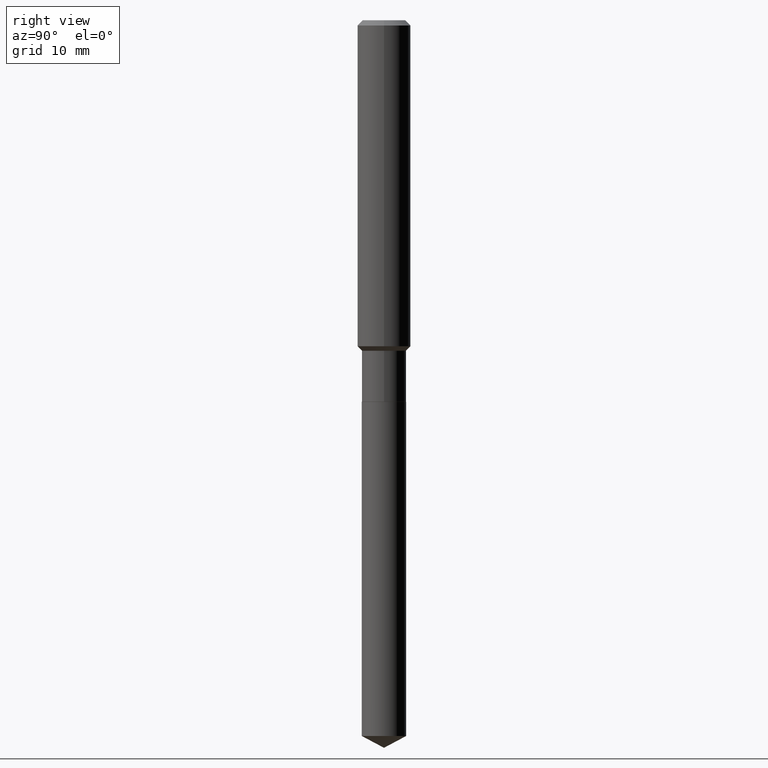
[diagram: clean part render]
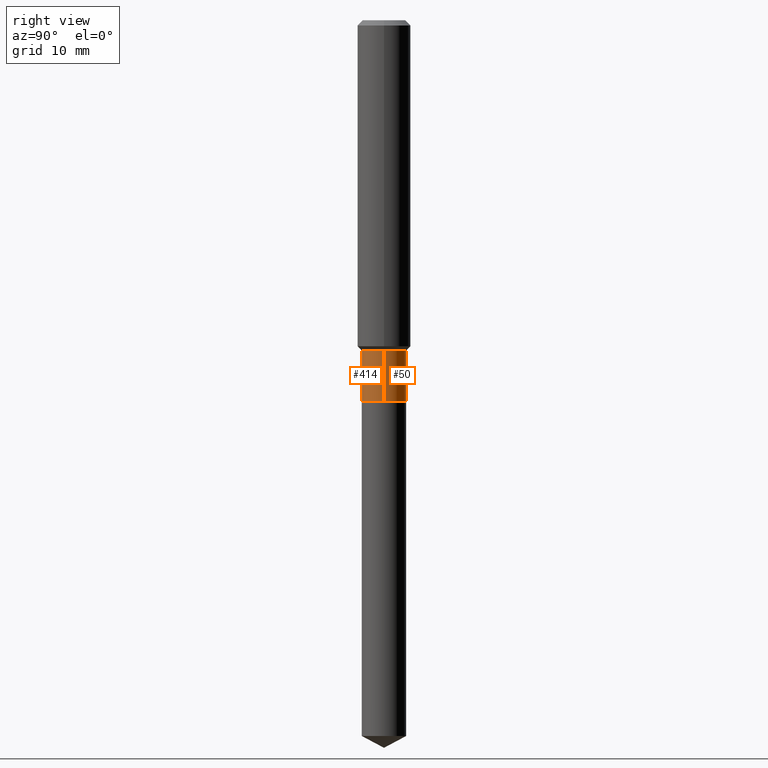
[diagram: same view with one multi-face feature highlighted, each face labeled with its STEP entity id]
A machine part, right view. The highlighted faces form ONE feature: a constant-radius fillet chain: 2 tangent blend faces with common blend radius 2.5006 mm. The faces share edges in the B-rep.
Their STEP definitions:
[1] entity #50 (Cylinder):
#29 = CARTESIAN_POINT ( 'NONE',  ( -0.09844999999999995421, -4.815090877279988422E-15, -1.466500000000000137 ) ) ;
#50 = ADVANCED_FACE ( 'NONE', ( #222 ), #472, .T. ) ;
#59 = DIRECTION ( 'NONE',  ( -2.445468806185136597E-29, 3.491481338843145583E-15, 1.000000000000000000 ) ) ;
#71 = VERTEX_POINT ( 'NONE', #165 ) ;
#103 = ORIENTED_EDGE ( 'NONE', *, *, #223, .F. ) ;
#165 = CARTESIAN_POINT ( 'NONE',  ( 0.09844999999999999585, -6.596455693476352920E-15, -1.692400000000000126 ) ) ;
#168 = CARTESIAN_POINT ( 'NONE',  ( 0.000000000000000000, 0.000000000000000000, 0.000000000000000000 ) ) ;
#180 = CIRCLE ( 'NONE', #458, 0.09844999999999995421 ) ;
#184 = CARTESIAN_POINT ( 'NONE',  ( 4.138711407587726116E-29, -5.908983017858140360E-15, -1.692400000000000126 ) ) ;
#185 = VERTEX_POINT ( 'NONE', #443 ) ;
#193 = DIRECTION ( 'NONE',  ( -2.445468806185136877E-29, 3.491481338843145188E-15, 1.000000000000000000 ) ) ;
#196 = VERTEX_POINT ( 'NONE', #409 ) ;
#209 = DIRECTION ( 'NONE',  ( -2.445468806185136597E-29, 3.491481338843145583E-15, 1.000000000000000000 ) ) ;
#222 = FACE_OUTER_BOUND ( 'NONE', #235, .T. ) ;
#223 = EDGE_CURVE ( 'NONE', #185, #244, #180, .T. ) ;
#226 = VECTOR ( 'NONE', #282, 39.37007874015748143 ) ;
#234 = DIRECTION ( 'NONE',  ( -2.445468806185136597E-29, 3.491481338843145583E-15, 1.000000000000000000 ) ) ;
#235 = EDGE_LOOP ( 'NONE', ( #456, #277, #103, #354 ) ) ;
#240 = EDGE_CURVE ( 'NONE', #71, #196, #476, .T. ) ;
#244 = VERTEX_POINT ( 'NONE', #29 ) ;
#260 = AXIS2_PLACEMENT_3D ( 'NONE', #168, #59, #482 ) ;
#274 = CARTESIAN_POINT ( 'NONE',  ( -0.09844999999999998197, 6.995293233558185049E-16, -4.842691596355953341E-30 ) ) ;
#277 = ORIENTED_EDGE ( 'NONE', *, *, #361, .T. ) ;
#282 = DIRECTION ( 'NONE',  ( -2.445468806185136877E-29, 3.491481338843145188E-15, 1.000000000000000000 ) ) ;
#313 = CARTESIAN_POINT ( 'NONE',  ( 0.09844999999999998197, -6.874726756182128559E-16, 4.800596035771097813E-30 ) ) ;
#354 = ORIENTED_EDGE ( 'NONE', *, *, #410, .F. ) ;
#361 = EDGE_CURVE ( 'NONE', #196, #244, #462, .T. ) ;
#379 = AXIS2_PLACEMENT_3D ( 'NONE', #184, #234, #486 ) ;
#409 = CARTESIAN_POINT ( 'NONE',  ( -0.09844999999999999585, -4.815090877279988422E-15, -1.692400000000000126 ) ) ;
#410 = EDGE_CURVE ( 'NONE', #71, #185, #469, .T. ) ;
#443 = CARTESIAN_POINT ( 'NONE',  ( 0.09844999999999995421, -5.807730059031686053E-15, -1.466500000000000137 ) ) ;
#454 = VECTOR ( 'NONE', #193, 39.37007874015748143 ) ;
#456 = ORIENTED_EDGE ( 'NONE', *, *, #240, .T. ) ;
#458 = AXIS2_PLACEMENT_3D ( 'NONE', #478, #209, #475 ) ;
#462 = LINE ( 'NONE', #274, #454 ) ;
#469 = LINE ( 'NONE', #313, #226 ) ;
#472 = CYLINDRICAL_SURFACE ( 'NONE', #260, 0.09844999999999998197 ) ;
#475 = DIRECTION ( 'NONE',  ( 1.000000000000000000, -6.982962677686269077E-15, 0.000000000000000000 ) ) ;
#476 = CIRCLE ( 'NONE', #379, 0.09844999999999999585 ) ;
#478 = CARTESIAN_POINT ( 'NONE',  ( 3.586280004270503451E-29, -5.120257383413473493E-15, -1.466500000000000137 ) ) ;
#482 = DIRECTION ( 'NONE',  ( 1.000000000000000000, -6.982962677686266711E-15, 4.876176775795935793E-29 ) ) ;
#486 = DIRECTION ( 'NONE',  ( 1.000000000000000000, -6.982962677686265922E-15, 0.000000000000000000 ) ) ;
[2] entity #414 (Cylinder):
#5 = AXIS2_PLACEMENT_3D ( 'NONE', #446, #93, #479 ) ;
#10 = CARTESIAN_POINT ( 'NONE',  ( 0.000000000000000000, 0.000000000000000000, 0.000000000000000000 ) ) ;
#29 = CARTESIAN_POINT ( 'NONE',  ( -0.09844999999999995421, -4.815090877279988422E-15, -1.466500000000000137 ) ) ;
#38 = DIRECTION ( 'NONE',  ( -2.445468806185136597E-29, 3.491481338843145583E-15, 1.000000000000000000 ) ) ;
#43 = ORIENTED_EDGE ( 'NONE', *, *, #361, .F. ) ;
#71 = VERTEX_POINT ( 'NONE', #165 ) ;
#73 = ORIENTED_EDGE ( 'NONE', *, *, #133, .F. ) ;
#82 = ORIENTED_EDGE ( 'NONE', *, *, #410, .T. ) ;
#92 = CIRCLE ( 'NONE', #5, 0.09844999999999995421 ) ;
#93 = DIRECTION ( 'NONE',  ( -2.445468806185136597E-29, 3.491481338843145583E-15, 1.000000000000000000 ) ) ;
#112 = CYLINDRICAL_SURFACE ( 'NONE', #287, 0.09844999999999998197 ) ;
#116 = FACE_OUTER_BOUND ( 'NONE', #434, .T. ) ;
#133 = EDGE_CURVE ( 'NONE', #244, #185, #92, .T. ) ;
#141 = CIRCLE ( 'NONE', #459, 0.09844999999999999585 ) ;
#165 = CARTESIAN_POINT ( 'NONE',  ( 0.09844999999999999585, -6.596455693476352920E-15, -1.692400000000000126 ) ) ;
#185 = VERTEX_POINT ( 'NONE', #443 ) ;
#193 = DIRECTION ( 'NONE',  ( -2.445468806185136877E-29, 3.491481338843145188E-15, 1.000000000000000000 ) ) ;
#196 = VERTEX_POINT ( 'NONE', #409 ) ;
#201 = CARTESIAN_POINT ( 'NONE',  ( 4.138711407587726116E-29, -5.908983017858140360E-15, -1.692400000000000126 ) ) ;
#226 = VECTOR ( 'NONE', #282, 39.37007874015748143 ) ;
#244 = VERTEX_POINT ( 'NONE', #29 ) ;
#274 = CARTESIAN_POINT ( 'NONE',  ( -0.09844999999999998197, 6.995293233558185049E-16, -4.842691596355953341E-30 ) ) ;
#276 = DIRECTION ( 'NONE',  ( -2.445468806185136597E-29, 3.491481338843145583E-15, 1.000000000000000000 ) ) ;
#282 = DIRECTION ( 'NONE',  ( -2.445468806185136877E-29, 3.491481338843145188E-15, 1.000000000000000000 ) ) ;
#287 = AXIS2_PLACEMENT_3D ( 'NONE', #10, #276, #350 ) ;
#313 = CARTESIAN_POINT ( 'NONE',  ( 0.09844999999999998197, -6.874726756182128559E-16, 4.800596035771097813E-30 ) ) ;
#350 = DIRECTION ( 'NONE',  ( 1.000000000000000000, -6.982962677686266711E-15, 4.876176775795935793E-29 ) ) ;
#353 = DIRECTION ( 'NONE',  ( 1.000000000000000000, -6.982962677686265922E-15, 0.000000000000000000 ) ) ;
#361 = EDGE_CURVE ( 'NONE', #196, #244, #462, .T. ) ;
#370 = EDGE_CURVE ( 'NONE', #196, #71, #141, .T. ) ;
#409 = CARTESIAN_POINT ( 'NONE',  ( -0.09844999999999999585, -4.815090877279988422E-15, -1.692400000000000126 ) ) ;
#410 = EDGE_CURVE ( 'NONE', #71, #185, #469, .T. ) ;
#414 = ADVANCED_FACE ( 'NONE', ( #116 ), #112, .T. ) ;
#417 = ORIENTED_EDGE ( 'NONE', *, *, #370, .T. ) ;
#434 = EDGE_LOOP ( 'NONE', ( #43, #417, #82, #73 ) ) ;
#443 = CARTESIAN_POINT ( 'NONE',  ( 0.09844999999999995421, -5.807730059031686053E-15, -1.466500000000000137 ) ) ;
#446 = CARTESIAN_POINT ( 'NONE',  ( 3.586280004270503451E-29, -5.120257383413473493E-15, -1.466500000000000137 ) ) ;
#454 = VECTOR ( 'NONE', #193, 39.37007874015748143 ) ;
#459 = AXIS2_PLACEMENT_3D ( 'NONE', #201, #38, #353 ) ;
#462 = LINE ( 'NONE', #274, #454 ) ;
#469 = LINE ( 'NONE', #313, #226 ) ;
#479 = DIRECTION ( 'NONE',  ( 1.000000000000000000, -6.982962677686269077E-15, 0.000000000000000000 ) ) ;